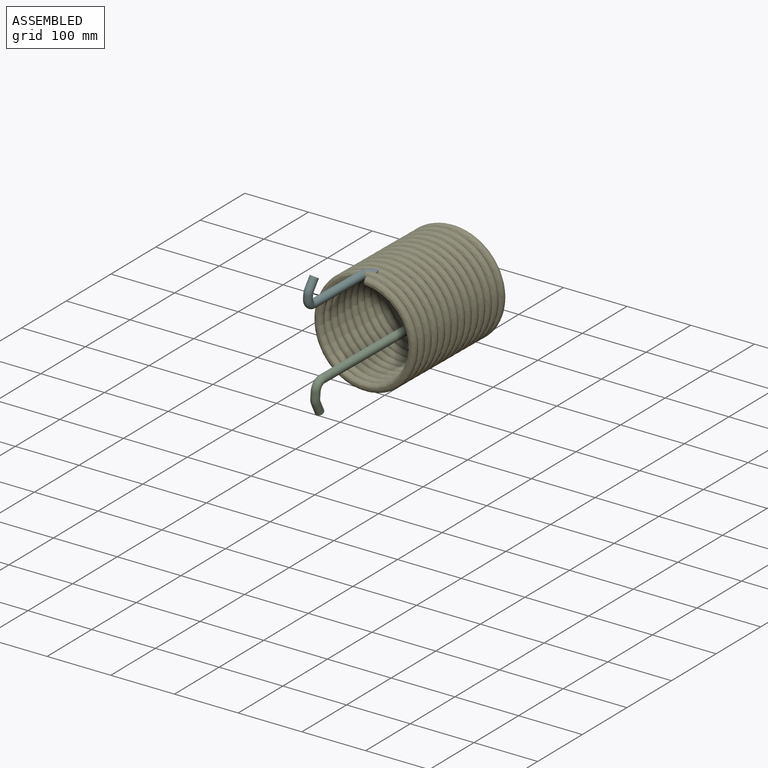
[diagram: assembled view]
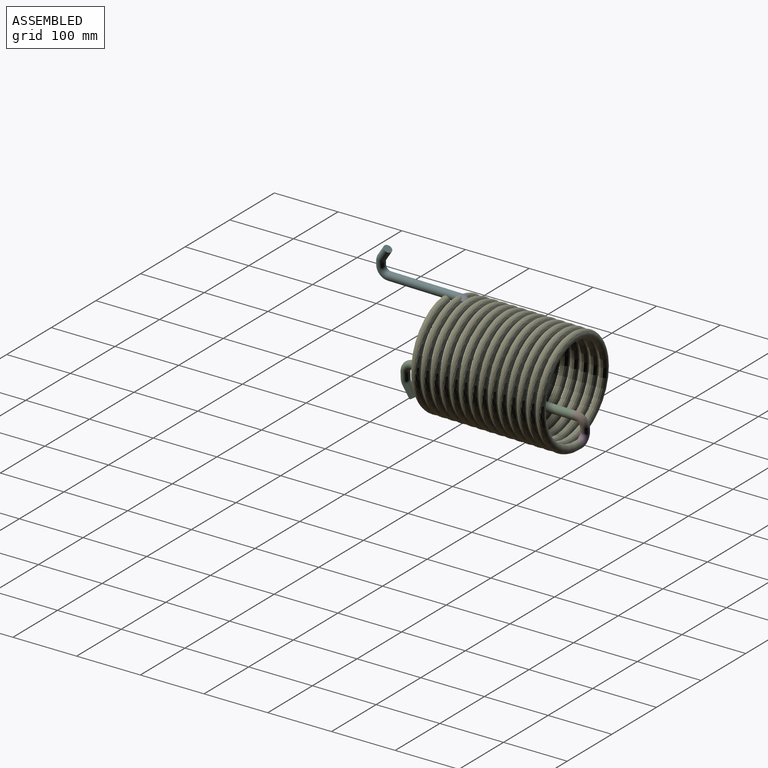
[diagram: assembled view, second angle]
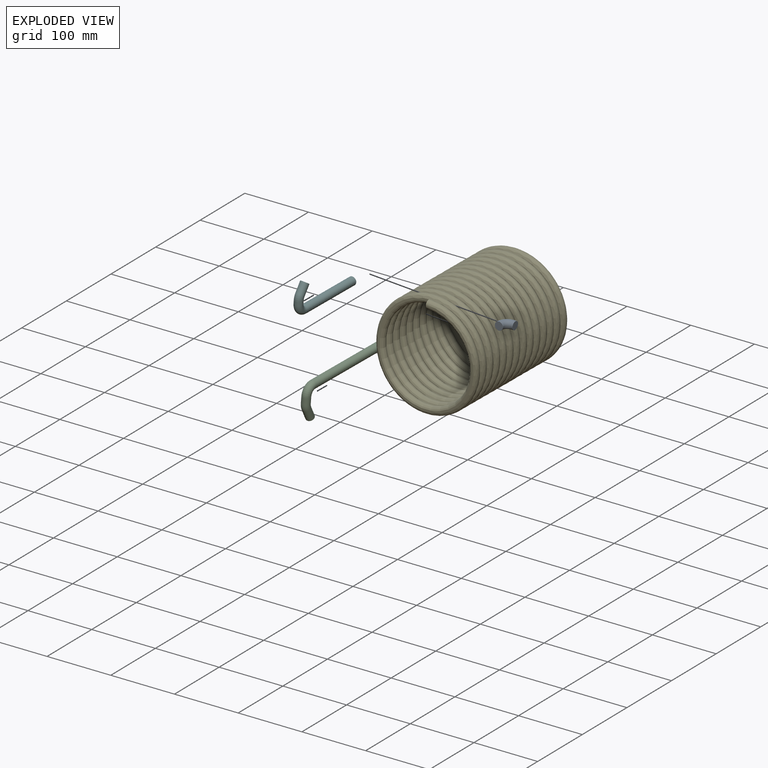
[diagram: exploded view]
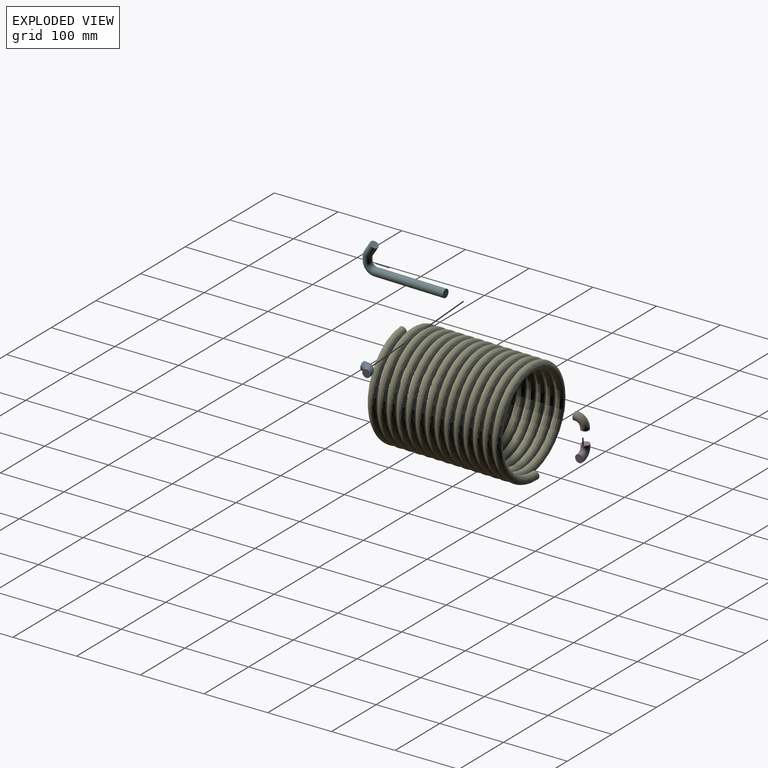
[diagram: exploded view, second angle]
ASSEMBLY  parts=6 mates=9
PART A: 5 faces, bbox 22.9x12.7x23.3 mm
  f0: plane 12.7x12.7mm, normal (0,0,1), area 126.7mm2, adj f2
  f1: plane 12.7x12.7mm, normal (-1,0,0), area 126.7mm2, adj f4
  f2: cylinder r=6.35mm len=12.7mm, axis (0,0,-1), area 107.4mm2, adj f0,f3
  f3: torus R=12.7mm, axis (0,1,0), area 795.9mm2, adj f2,f4
  f4: cylinder r=6.35mm len=12.7mm, axis (-1,0,0), area 89.9mm2, adj f1,f3
PART B: same geometry as A
PART C: 7 faces, bbox 58x12.7x274.6 mm
  f0: plane 12.7x12.7mm, normal (0,0,1), area 126.7mm2, adj f2
  f1: plane 12.7x10.88mm, normal (-0.86,0,0.52), area 126.7mm2, adj f6
  f2: cylinder r=6.35mm len=254mm, axis (0,0,-1), area 10134.1mm2, adj f0,f3
  f3: torus R=12.7mm, axis (0,1,0), area 795.9mm2, adj f2,f4
  f4: cylinder r=6.35mm len=12.7mm, axis (-1,0,0), area 410.8mm2, adj f3,f5
  f5: torus R=12.7mm, axis (0,1,0), area 274.6mm2, adj f4,f6
  f6: cylinder r=6.35mm len=23.83mm, axis (-0.86,0,0.52), area 804.8mm2, adj f1,f5
PART D: same geometry as A
PART E: 3 faces, bbox 177.8x217.8x177.8 mm
  f0: plane 12.7x12.7mm, normal (-1,0,0), area 126.7mm2, adj f2
  f1: plane 12.7x12.7mm, normal (-1,0,0), area 126.7mm2, adj f2
  f2: bspline ~217.78x177.8mm, area 257979.5mm2, adj f0,f1
PART F: 7 faces, bbox 50.8x12.7x130 mm
  f0: plane 12.7x12.7mm, normal (0,0,1), area 126.7mm2, adj f2
  f1: plane 12.7x10.69mm, normal (-0.84,0,0.54), area 126.7mm2, adj f6
  f2: cylinder r=6.35mm len=109.33mm, axis (0,0,-1), area 4362.2mm2, adj f0,f3
  f3: torus R=12.7mm, axis (0,1,0), area 795.9mm2, adj f2,f4
  f4: cylinder r=6.35mm len=12.7mm, axis (-1,0,0), area 211.3mm2, adj f3,f5
  f5: torus R=12.7mm, axis (0,1,0), area 289.2mm2, adj f4,f6
  f6: cylinder r=6.35mm len=21.41mm, axis (-0.84,0,0.54), area 689.7mm2, adj f1,f5
PLACE A rot(axis=(0.02,-0.7,0.71),177.3deg) t=(-102.43,-175.98,18.66)mm
PLACE B rot(axis=(-0.71,-0.71,0.03),177.9deg) t=(-110.62,-0.02,-104.56)mm
PLACE C rot(axis=(-0.61,-0.57,-0.56),118.3deg) t=(-110.4,-217.58,-101.3)mm
PLACE D rot(axis=(-0.03,-0.01,-1),180deg) t=(-112.66,-0.48,-135.27)mm
PLACE E rot(axis=(-0.22,0.98,0.01),3.9deg) t=(-92.68,0.66,-60.23)mm
PLACE F rot(axis=(-0.55,0.59,0.58),122.7deg) t=(-102.35,-255.21,19.85)mm
MATE planar B.f2 <-> D.f2  axis (-0.07,-0.02,-1) through (-111.64,-0.25,-119.91)mm
MATE planar B.f2 <-> D.f2  axis (-0.07,-0.02,-1) through (-111.64,-0.25,-119.91)mm
MATE planar B.f4 <-> C.f2  axis (0,-1,0.01) through (-110.6,-14.97,-104.33)mm
MATE planar D.f4 <-> E.f0  axis (1,0,-0.07) through (-97.74,-0.48,-136.26)mm
MATE planar E.f0 <-> D.f4  axis (-1,0,0.07) through (-97.74,-0.48,-136.26)mm
MATE planar F.f2 <-> A.f2  axis (0,1,-0.01) through (-102.41,-191.37,18.89)mm
MATE planar C.f2 <-> B.f4  axis (0,1,-0.01) through (-110.6,-14.97,-104.33)mm
MATE planar E.f1 <-> A.f4  axis (-1,0,0.07) through (-87.43,-201.37,18.83)mm
MATE planar C.f2 <-> B.f4  axis (0,1,-0.01) through (-110.6,-14.97,-104.33)mm
